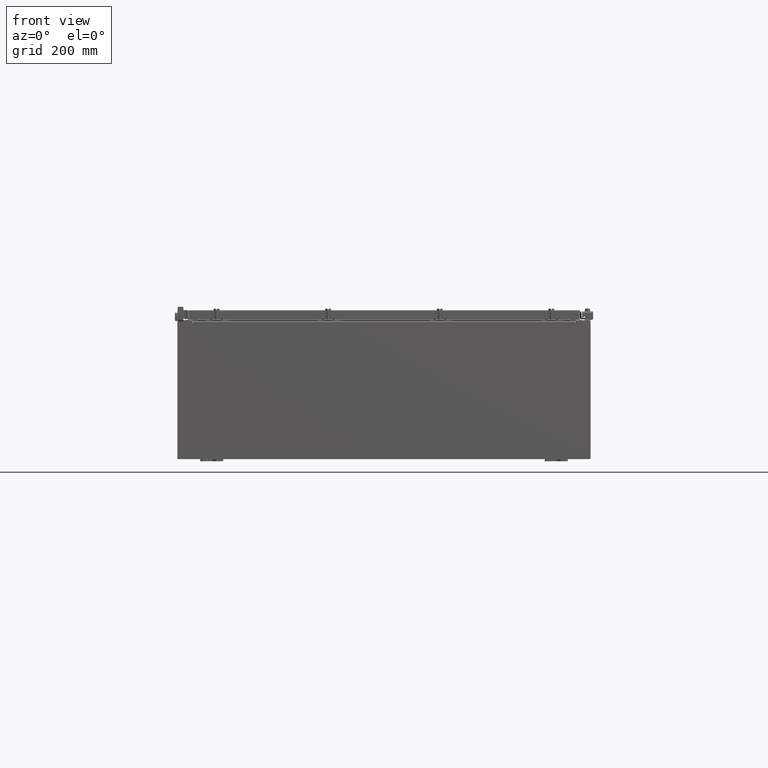
[diagram: clean part render]
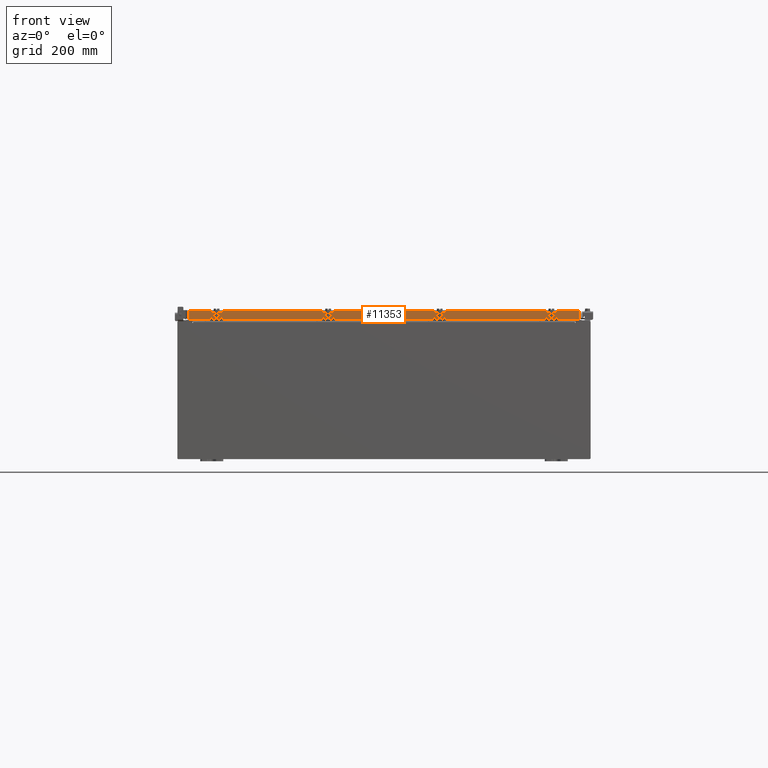
[diagram: same view with one face highlighted and labeled with its STEP entity id]
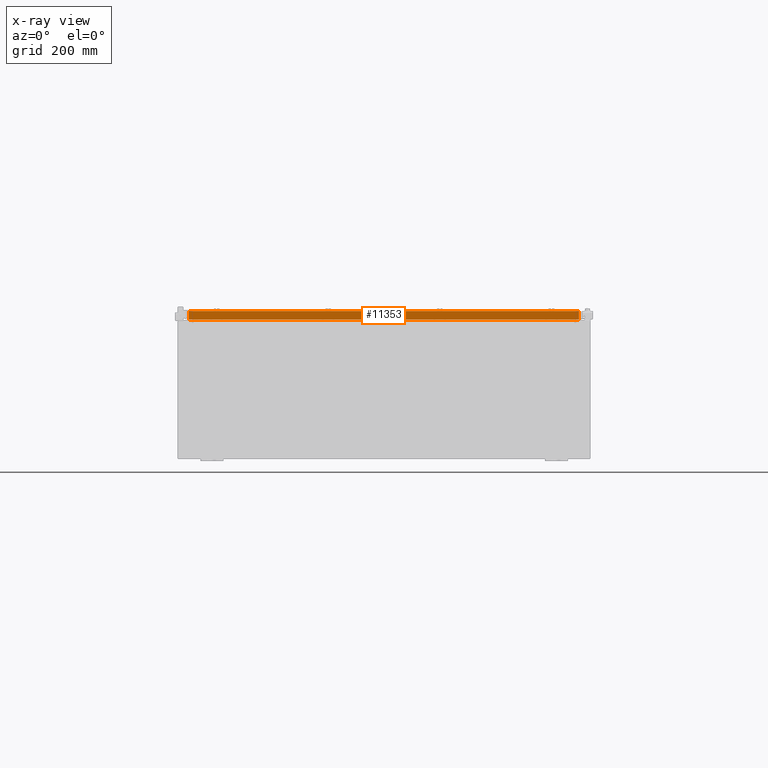
[diagram: x-ray of the same camera — body ghosted, the highlighted face saturated]
A machine part, front view. The second image highlights one B-rep face of the part: STEP entity #11353.
The next image is the same camera in x-ray: the body ghosted, the highlighted face saturated — about 0% of this face is hidden behind the body in this view.
In plain terms, the highlighted planar face has unit normal (0, 1, 0).
Its self-contained STEP definition (entity closure, byte-faithful):
#50 = CARTESIAN_POINT ( 'NONE',  ( -16.98915786437626700, -23.09399999999999400, 2.608136560115737200E-016 ) ) ;
#1511 = CARTESIAN_POINT ( 'NONE',  ( 16.98915786437627100, -23.09399999999999400, -0.08769999999999589200 ) ) ;
#1707 = DIRECTION ( 'NONE',  ( -0.0000000000000000000, 3.607333059089402100E-031, -1.000000000000000000 ) ) ;
#1769 = VERTEX_POINT ( 'NONE', #10662 ) ;
#2095 = FACE_OUTER_BOUND ( 'NONE', #22307, .T. ) ;
#2461 = CARTESIAN_POINT ( 'NONE',  ( -16.98915786437626700, -23.09399999999999400, -0.08769999999999589200 ) ) ;
#2965 = VECTOR ( 'NONE', #3490, 39.37007874015748100 ) ;
#3111 = LINE ( 'NONE', #15833, #8751 ) ;
#3488 = ORIENTED_EDGE ( 'NONE', *, *, #6740, .F. ) ;
#3490 = DIRECTION ( 'NONE',  ( 1.000000000000000000, -1.279703943630056600E-016, 1.368455531567204500E-048 ) ) ;
#3888 = LINE ( 'NONE', #16462, #20118 ) ;
#3954 = CARTESIAN_POINT ( 'NONE',  ( 16.23915786437626700, -23.09400000000000100, -0.8499999999999990900 ) ) ;
#4535 = EDGE_CURVE ( 'NONE', #24214, #26718, #9263, .T. ) ;
#4699 = VERTEX_POINT ( 'NONE', #3954 ) ;
#5947 = CARTESIAN_POINT ( 'NONE',  ( 16.23915786437626700, -23.09400000000000100, -0.8499999999999990900 ) ) ;
#5973 = DIRECTION ( 'NONE',  ( -1.000000000000000000, 1.279703943630056600E-016, 1.239713195391617400E-016 ) ) ;
#6740 = EDGE_CURVE ( 'NONE', #4699, #12422, #13497, .T. ) ;
#7162 = VECTOR ( 'NONE', #25035, 39.37007874015748100 ) ;
#7348 = DIRECTION ( 'NONE',  ( -1.000000000000000000, 1.279703943630056600E-016, 1.239713195391617400E-016 ) ) ;
#7450 = EDGE_CURVE ( 'NONE', #26718, #1769, #17228, .T. ) ;
#7787 = CARTESIAN_POINT ( 'NONE',  ( 17.07800000000000300, -23.09399999999999400, -0.08769999999999589200 ) ) ;
#8119 = ORIENTED_EDGE ( 'NONE', *, *, #18106, .T. ) ;
#8572 = DIRECTION ( 'NONE',  ( 0.0000000000000000000, 3.607333059089402100E-031, -1.000000000000000000 ) ) ;
#8751 = VECTOR ( 'NONE', #7348, 39.37007874015748100 ) ;
#9263 = LINE ( 'NONE', #7787, #2965 ) ;
#10662 = CARTESIAN_POINT ( 'NONE',  ( 16.98915786437627100, -23.09399999999999400, -0.8499999999999996400 ) ) ;
#10915 = VECTOR ( 'NONE', #1707, 39.37007874015748100 ) ;
#10987 = EDGE_CURVE ( 'NONE', #12422, #20722, #3111, .T. ) ;
#11034 = AXIS2_PLACEMENT_3D ( 'NONE', #21036, #27321, #14783 ) ;
#11353 = ADVANCED_FACE ( 'NONE', ( #2095 ), #23029, .F. ) ;
#11473 = ORIENTED_EDGE ( 'NONE', *, *, #20924, .F. ) ;
#12422 = VERTEX_POINT ( 'NONE', #15673 ) ;
#13497 = LINE ( 'NONE', #5947, #7162 ) ;
#14590 = ORIENTED_EDGE ( 'NONE', *, *, #10987, .F. ) ;
#14783 = DIRECTION ( 'NONE',  ( -1.000000000000000000, 1.279703943630056600E-016, 0.0000000000000000000 ) ) ;
#15673 = CARTESIAN_POINT ( 'NONE',  ( -16.23915786437626400, -23.09400000000000100, -0.8499999999999990900 ) ) ;
#15833 = CARTESIAN_POINT ( 'NONE',  ( 17.07800000000000300, -23.09400000000000100, -0.8499999999999996400 ) ) ;
#16462 = CARTESIAN_POINT ( 'NONE',  ( 17.07800000000000300, -23.09400000000000100, -0.8499999999999996400 ) ) ;
#16584 = CARTESIAN_POINT ( 'NONE',  ( 16.98915786437627100, -23.09399999999999400, -0.07470000000000000300 ) ) ;
#16712 = ORIENTED_EDGE ( 'NONE', *, *, #7450, .F. ) ;
#17228 = LINE ( 'NONE', #16584, #10915 ) ;
#17750 = CARTESIAN_POINT ( 'NONE',  ( -16.98915786437626700, -23.09399999999999400, -0.8499999999999954300 ) ) ;
#18106 = EDGE_CURVE ( 'NONE', #24214, #20722, #21555, .T. ) ;
#20118 = VECTOR ( 'NONE', #5973, 39.37007874015748100 ) ;
#20722 = VERTEX_POINT ( 'NONE', #17750 ) ;
#20924 = EDGE_CURVE ( 'NONE', #1769, #4699, #3888, .T. ) ;
#21036 = CARTESIAN_POINT ( 'NONE',  ( -2.955348287419252300E-015, -23.09399999999999400, 2.608136560115737200E-016 ) ) ;
#21555 = LINE ( 'NONE', #50, #26442 ) ;
#22307 = EDGE_LOOP ( 'NONE', ( #25551, #8119, #14590, #3488, #11473, #16712 ) ) ;
#23029 = PLANE ( 'NONE',  #11034 ) ;
#24214 = VERTEX_POINT ( 'NONE', #2461 ) ;
#25035 = DIRECTION ( 'NONE',  ( -1.000000000000000000, 0.0000000000000000000, 0.0000000000000000000 ) ) ;
#25551 = ORIENTED_EDGE ( 'NONE', *, *, #4535, .F. ) ;
#26442 = VECTOR ( 'NONE', #8572, 39.37007874015748100 ) ;
#26718 = VERTEX_POINT ( 'NONE', #1511 ) ;
#27321 = DIRECTION ( 'NONE',  ( 1.279703943630056600E-016, 1.000000000000000000, 3.607333059089401300E-031 ) ) ;